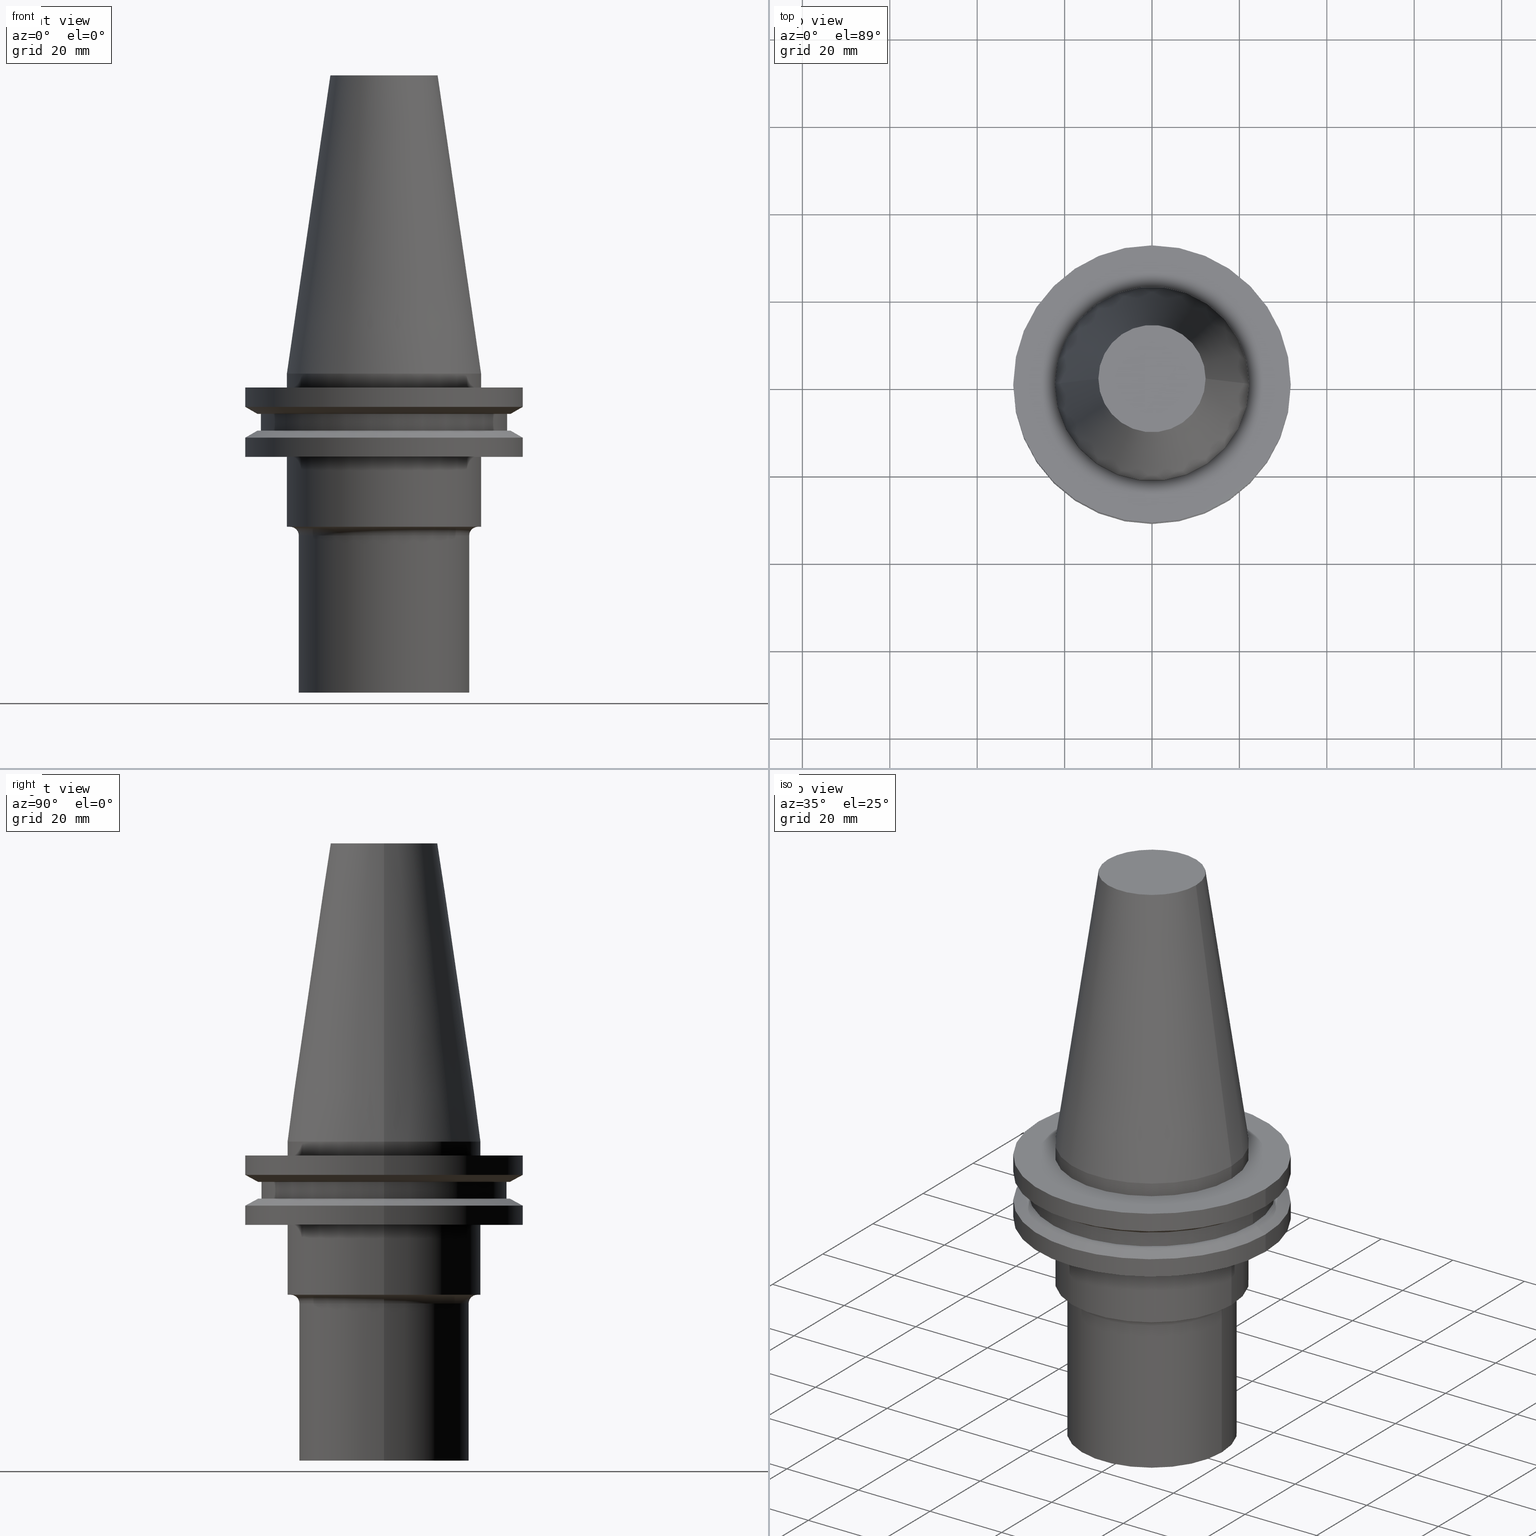
[diagram: canonical four-view strip — front | top / right | iso, engineering-drawing reading convention]
A machine part, canonical four-view strip (front | top / right | iso — engineering-drawing reading convention). The complete STEP part file that produces these views, byte-faithful:
ISO-10303-21;
HEADER;
FILE_DESCRIPTION (( 'STEP AP203' ),
    '1' );
FILE_NAME ('11_326_441.stp',
    '2022-03-07T22:04:06',
    ( '' ),
    ( '' ),
    'SwSTEP 2.0',
    'SolidWorks 2021',
    '' );
FILE_SCHEMA (( 'CONFIG_CONTROL_DESIGN' ));
ENDSEC;

DATA;
#1 = CIRCLE ( 'NONE', #713, 21.50000000000000000 ) ;
#2 = VERTEX_POINT ( 'NONE', #377 ) ;
#3 = CYLINDRICAL_SURFACE ( 'NONE', #256, 22.22500000000000142 ) ;
#4 = CARTESIAN_POINT ( 'NONE',  ( 0.000000000000000000, 0.000000000000000000, 0.000000000000000000 ) ) ;
#5 = EDGE_CURVE ( 'NONE', #2, #93, #462, .T. ) ;
#6 = AXIS2_PLACEMENT_3D ( 'NONE', #472, #660, #467 ) ;
#7 = DIRECTION ( 'NONE',  ( 1.224646799147353207E-16, 1.000000000000000000, 0.000000000000000000 ) ) ;
#8 = CARTESIAN_POINT ( 'NONE',  ( 0.000000000000000000, 0.000000000000000000, -13.05499999999999794 ) ) ;
#9 = AXIS2_PLACEMENT_3D ( 'NONE', #375, #442, #272 ) ;
#10 = LOCAL_TIME ( 16, 4, 6.000000000000000000, #733 ) ;
#11 = ORIENTED_EDGE ( 'NONE', *, *, #537, .F. ) ;
#12 = DIRECTION ( 'NONE',  ( 0.1443082272672999711, 1.767266086135276757E-17, -0.9895327864921755756 ) ) ;
#13 = VERTEX_POINT ( 'NONE', #259 ) ;
#14 = EDGE_CURVE ( 'NONE', #90, #193, #684, .T. ) ;
#15 = DIRECTION ( 'NONE',  ( -0.000000000000000000, -0.000000000000000000, 1.000000000000000000 ) ) ;
#16 = CIRCLE ( 'NONE', #6, 19.50000000000000000 ) ;
#17 = VERTEX_POINT ( 'NONE', #257 ) ;
#18 = CC_DESIGN_PERSON_AND_ORGANIZATION_ASSIGNMENT ( #243, #363, ( #284 ) ) ;
#19 = CIRCLE ( 'NONE', #151, 19.50000000000000000 ) ;
#20 = LINE ( 'NONE', #370, #654 ) ;
#21 = VERTEX_POINT ( 'NONE', #197 ) ;
#22 = CIRCLE ( 'NONE', #221, 19.50000000000000000 ) ;
#23 = ORIENTED_EDGE ( 'NONE', *, *, #120, .T. ) ;
#24 = EDGE_CURVE ( 'NONE', #479, #583, #49, .T. ) ;
#25 = CARTESIAN_POINT ( 'NONE',  ( -31.75000000000000000, 3.888253587292846476E-15, 68.25000000000000000 ) ) ;
#26 = DIRECTION ( 'NONE',  ( -0.000000000000000000, -0.000000000000000000, 1.000000000000000000 ) ) ;
#27 = ORIENTED_EDGE ( 'NONE', *, *, #265, .T. ) ;
#28 = AXIS2_PLACEMENT_3D ( 'NONE', #519, #43, #699 ) ;
#29 = EDGE_CURVE ( 'NONE', #249, #703, #19, .T. ) ;
#30 = ORIENTED_EDGE ( 'NONE', *, *, #58, .F. ) ;
#31 = AXIS2_PLACEMENT_3D ( 'NONE', #217, #99, #772 ) ;
#32 = PLANE ( 'NONE',  #436 ) ;
#33 = LINE ( 'NONE', #636, #269 ) ;
#34 = VERTEX_POINT ( 'NONE', #435 ) ;
#35 = AXIS2_PLACEMENT_3D ( 'NONE', #697, #448, #691 ) ;
#36 = ORIENTED_EDGE ( 'NONE', *, *, #292, .F. ) ;
#37 = DIRECTION ( 'NONE',  ( -0.000000000000000000, -0.000000000000000000, 1.000000000000000000 ) ) ;
#38 = AXIS2_PLACEMENT_3D ( 'NONE', #414, #180, #776 ) ;
#39 = ADVANCED_FACE ( 'NONE', ( #441 ), #642, .T. ) ;
#40 = DIRECTION ( 'NONE',  ( -0.000000000000000000, -0.000000000000000000, 1.000000000000000000 ) ) ;
#41 = VERTEX_POINT ( 'NONE', #548 ) ;
#42 = CIRCLE ( 'NONE', #469, 22.22500000000000142 ) ;
#43 = DIRECTION ( 'NONE',  ( -0.000000000000000000, -0.000000000000000000, 1.000000000000000000 ) ) ;
#44 = FACE_OUTER_BOUND ( 'NONE', #668, .T. ) ;
#45 = ORIENTED_EDGE ( 'NONE', *, *, #194, .F. ) ;
#46 = FACE_OUTER_BOUND ( 'NONE', #449, .T. ) ;
#47 = APPLICATION_CONTEXT ( 'configuration controlled 3d designs of mechanical parts and assemblies' ) ;
#48 = CARTESIAN_POINT ( 'NONE',  ( -22.22500000000000142, 2.721777511104992849E-15, -19.04999999999999716 ) ) ;
#49 = CIRCLE ( 'NONE', #612, 22.22500000000000142 ) ;
#50 = FACE_OUTER_BOUND ( 'NONE', #114, .T. ) ;
#51 = EDGE_LOOP ( 'NONE', ( #231, #607 ) ) ;
#52 = DIRECTION ( 'NONE',  ( -0.000000000000000000, -0.000000000000000000, 1.000000000000000000 ) ) ;
#53 = APPROVAL_PERSON_ORGANIZATION ( #510, #520, #54 ) ;
#54 = APPROVAL_ROLE ( '' ) ;
#55 = DIRECTION ( 'NONE',  ( 1.000000000000000000, 0.000000000000000000, 0.000000000000000000 ) ) ;
#56 = VERTEX_POINT ( 'NONE', #500 ) ;
#57 = CARTESIAN_POINT ( 'NONE',  ( 0.000000000000000000, 0.000000000000000000, -35.04999999999999716 ) ) ;
#58 = EDGE_CURVE ( 'NONE', #383, #606, #20, .T. ) ;
#59 = PLANE ( 'NONE',  #374 ) ;
#60 = ORIENTED_EDGE ( 'NONE', *, *, #254, .T. ) ;
#61 = AXIS2_PLACEMENT_3D ( 'NONE', #593, #531, #595 ) ;
#62 = CARTESIAN_POINT ( 'NONE',  ( 28.97919780457007732, 0.000000000000000000, -9.205000000000005400 ) ) ;
#63 = VECTOR ( 'NONE', #264, 1000.000000000000000 ) ;
#64 = ORIENTED_EDGE ( 'NONE', *, *, #254, .F. ) ;
#65 = LINE ( 'NONE', #664, #147 ) ;
#66 = PERSON_AND_ORGANIZATION ( #715, #475 ) ;
#67 = AXIS2_PLACEMENT_3D ( 'NONE', #458, #717, #517 ) ;
#68 = ADVANCED_FACE ( 'NONE', ( #85 ), #730, .T. ) ;
#69 = DIRECTION ( 'NONE',  ( 1.000000000000000000, 0.000000000000000000, 0.000000000000000000 ) ) ;
#70 = DATE_TIME_ROLE ( 'creation_date' ) ;
#71 = CARTESIAN_POINT ( 'NONE',  ( -21.50000000000000000, 2.632990618166809630E-15, -35.04999999999999716 ) ) ;
#72 = SECURITY_CLASSIFICATION_LEVEL ( 'unclassified' ) ;
#73 = DIRECTION ( 'NONE',  ( -0.8660254037844387076, 0.000000000000000000, -0.4999999999999998890 ) ) ;
#74 = EDGE_CURVE ( 'NONE', #637, #13, #167, .T. ) ;
#75 = VERTEX_POINT ( 'NONE', #736 ) ;
#76 = VECTOR ( 'NONE', #552, 1000.000000000000000 ) ;
#77 = CARTESIAN_POINT ( 'NONE',  ( -28.17999999999999972, 3.451054679997241634E-15, -13.05499999999999794 ) ) ;
#78 = ORIENTED_EDGE ( 'NONE', *, *, #194, .T. ) ;
#79 = AXIS2_PLACEMENT_3D ( 'NONE', #597, #356, #240 ) ;
#80 = DIRECTION ( 'NONE',  ( -0.000000000000000000, -0.000000000000000000, 1.000000000000000000 ) ) ;
#81 = CIRCLE ( 'NONE', #253, 31.75000000000000000 ) ;
#82 = DIRECTION ( 'NONE',  ( -0.000000000000000000, -0.000000000000000000, 1.000000000000000000 ) ) ;
#83 = EDGE_CURVE ( 'NONE', #308, #755, #751, .T. ) ;
#84 = CC_DESIGN_APPROVAL ( #169, ( #661 ) ) ;
#85 = FACE_OUTER_BOUND ( 'NONE', #456, .T. ) ;
#86 = DIRECTION ( 'NONE',  ( -0.000000000000000000, -0.000000000000000000, 1.000000000000000000 ) ) ;
#87 = ORIENTED_EDGE ( 'NONE', *, *, #144, .F. ) ;
#88 = CC_DESIGN_PERSON_AND_ORGANIZATION_ASSIGNMENT ( #119, #109, ( #661 ) ) ;
#89 = CALENDAR_DATE ( 2022, 7, 3 ) ;
#90 = VERTEX_POINT ( 'NONE', #738 ) ;
#91 = DIRECTION ( 'NONE',  ( 1.000000000000000000, 0.000000000000000000, 0.000000000000000000 ) ) ;
#92 = DIRECTION ( 'NONE',  ( -0.000000000000000000, -0.000000000000000000, 1.000000000000000000 ) ) ;
#93 = VERTEX_POINT ( 'NONE', #94 ) ;
#94 = CARTESIAN_POINT ( 'NONE',  ( -22.22500000000000142, 0.000000000000000000, 0.000000000000000000 ) ) ;
#95 = EDGE_CURVE ( 'NONE', #606, #193, #81, .T. ) ;
#96 = CARTESIAN_POINT ( 'NONE',  ( 31.75000000000000000, 0.000000000000000000, -7.605276606597335842 ) ) ;
#97 = EDGE_LOOP ( 'NONE', ( #136, #150 ) ) ;
#98 = AXIS2_PLACEMENT_3D ( 'NONE', #621, #92, #282 ) ;
#99 = DIRECTION ( 'NONE',  ( 0.000000000000000000, 0.000000000000000000, -1.000000000000000000 ) ) ;
#100 = ADVANCED_FACE ( 'NONE', ( #260, #490 ), #743, .F. ) ;
#101 = CARTESIAN_POINT ( 'NONE',  ( 0.000000000000000000, 28.97919780457007732, -9.204999999999996518 ) ) ;
#102 = CARTESIAN_POINT ( 'NONE',  ( 0.000000000000000000, 0.000000000000000000, 68.25000000000000000 ) ) ;
#103 = EDGE_LOOP ( 'NONE', ( #487, #646 ) ) ;
#104 = CARTESIAN_POINT ( 'NONE',  ( -22.22500000000000142, 2.721777511104992849E-15, -35.04999999999999716 ) ) ;
#105 = CYLINDRICAL_SURFACE ( 'NONE', #364, 31.75000000000000000 ) ;
#106 = AXIS2_PLACEMENT_3D ( 'NONE', #122, #303, #131 ) ;
#107 = EDGE_LOOP ( 'NONE', ( #324, #112, #666, #615 ) ) ;
#108 = DIRECTION ( 'NONE',  ( -0.000000000000000000, -0.000000000000000000, 1.000000000000000000 ) ) ;
#109 = PERSON_AND_ORGANIZATION_ROLE ( 'creator' ) ;
#110 = AXIS2_PLACEMENT_3D ( 'NONE', #271, #489, #311 ) ;
#111 = DIRECTION ( 'NONE',  ( 1.000000000000000000, 0.000000000000000000, 0.000000000000000000 ) ) ;
#112 = ORIENTED_EDGE ( 'NONE', *, *, #234, .T. ) ;
#113 = DIRECTION ( 'NONE',  ( -0.000000000000000000, -0.000000000000000000, 1.000000000000000000 ) ) ;
#114 = EDGE_LOOP ( 'NONE', ( #427, #539 ) ) ;
#115 = EDGE_CURVE ( 'NONE', #75, #775, #744, .T. ) ;
#116 = FACE_OUTER_BOUND ( 'NONE', #687, .T. ) ;
#117 = ORIENTED_EDGE ( 'NONE', *, *, #285, .F. ) ;
#118 = CARTESIAN_POINT ( 'NONE',  ( 21.50000000000000000, 0.000000000000000000, -35.04999999999999716 ) ) ;
#119 = PERSON_AND_ORGANIZATION ( #715, #475 ) ;
#120 = EDGE_CURVE ( 'NONE', #339, #277, #325, .T. ) ;
#121 = CLOSED_SHELL ( 'NONE', ( #574, #745, #502, #726, #326, #186, #223, #416, #176, #333, #39, #465, #497, #526, #100, #546, #304, #773, #694, #647, #68, #587, #470, #300, #561, #309, #196 ) ) ;
#122 = CARTESIAN_POINT ( 'NONE',  ( 0.000000000000000000, 0.000000000000000000, -3.174999999999997158 ) ) ;
#123 = MECHANICAL_CONTEXT ( 'NONE', #255, 'mechanical' ) ;
#124 = CIRCLE ( 'NONE', #405, 28.97919780457008088 ) ;
#125 = FACE_OUTER_BOUND ( 'NONE', #107, .T. ) ;
#126 = CARTESIAN_POINT ( 'NONE',  ( -21.50000000000000000, 2.632990618166809235E-15, -37.04999999999999716 ) ) ;
#127 = ORIENTED_EDGE ( 'NONE', *, *, #659, .T. ) ;
#128 = AXIS2_PLACEMENT_3D ( 'NONE', #504, #52, #575 ) ;
#129 = ORIENTED_EDGE ( 'NONE', *, *, #614, .F. ) ;
#130 = EDGE_CURVE ( 'NONE', #193, #606, #690, .T. ) ;
#131 = DIRECTION ( 'NONE',  ( 1.000000000000000000, 0.000000000000000000, 0.000000000000000000 ) ) ;
#132 = ORIENTED_EDGE ( 'NONE', *, *, #580, .F. ) ;
#133 = ORIENTED_EDGE ( 'NONE', *, *, #623, .T. ) ;
#134 = DIRECTION ( 'NONE',  ( -0.000000000000000000, -0.000000000000000000, 1.000000000000000000 ) ) ;
#135 = EDGE_CURVE ( 'NONE', #601, #34, #474, .T. ) ;
#136 = ORIENTED_EDGE ( 'NONE', *, *, #635, .F. ) ;
#137 = DIRECTION ( 'NONE',  ( 1.000000000000000000, 0.000000000000000000, 0.000000000000000000 ) ) ;
#138 = DIRECTION ( 'NONE',  ( -0.000000000000000000, -0.000000000000000000, 1.000000000000000000 ) ) ;
#139 = VECTOR ( 'NONE', #739, 1000.000000000000000 ) ;
#140 = ORIENTED_EDGE ( 'NONE', *, *, #265, .F. ) ;
#141 = LINE ( 'NONE', #491, #76 ) ;
#142 = CARTESIAN_POINT ( 'NONE',  ( 0.000000000000000000, 0.000000000000000000, 68.25000000000000000 ) ) ;
#143 = ORIENTED_EDGE ( 'NONE', *, *, #135, .T. ) ;
#144 = EDGE_CURVE ( 'NONE', #41, #568, #216, .T. ) ;
#145 = VECTOR ( 'NONE', #73, 1000.000000000000000 ) ;
#146 = ORIENTED_EDGE ( 'NONE', *, *, #555, .F. ) ;
#147 = VECTOR ( 'NONE', #352, 1000.000000000000000 ) ;
#148 = CARTESIAN_POINT ( 'NONE',  ( 0.000000000000000000, 0.000000000000000000, -3.174999999999997158 ) ) ;
#149 = DIRECTION ( 'NONE',  ( -0.000000000000000000, -0.000000000000000000, 1.000000000000000000 ) ) ;
#150 = ORIENTED_EDGE ( 'NONE', *, *, #610, .F. ) ;
#151 = AXIS2_PLACEMENT_3D ( 'NONE', #619, #134, #137 ) ;
#152 = CARTESIAN_POINT ( 'NONE',  ( 0.000000000000000000, 0.000000000000000000, 68.25000000000000000 ) ) ;
#153 = CARTESIAN_POINT ( 'NONE',  ( 0.000000000000000000, 0.000000000000000000, -9.204999999999991189 ) ) ;
#154 = PLANE ( 'NONE',  #547 ) ;
#155 = ORIENTED_EDGE ( 'NONE', *, *, #130, .T. ) ;
#156 = VECTOR ( 'NONE', #12, 999.9999999999998863 ) ;
#157 = DIRECTION ( 'NONE',  ( 1.000000000000000000, 0.000000000000000000, 0.000000000000000000 ) ) ;
#158 = DIRECTION ( 'NONE',  ( 1.000000000000000000, 0.000000000000000000, 0.000000000000000000 ) ) ;
#159 = DIRECTION ( 'NONE',  ( -0.000000000000000000, -0.000000000000000000, 1.000000000000000000 ) ) ;
#160 = ORIENTED_EDGE ( 'NONE', *, *, #285, .T. ) ;
#161 = DIRECTION ( 'NONE',  ( 1.000000000000000000, 0.000000000000000000, 0.000000000000000000 ) ) ;
#162 = EDGE_CURVE ( 'NONE', #75, #601, #628, .T. ) ;
#163 = DIRECTION ( 'NONE',  ( -0.000000000000000000, -0.000000000000000000, 1.000000000000000000 ) ) ;
#164 = ORIENTED_EDGE ( 'NONE', *, *, #24, .F. ) ;
#165 = DIRECTION ( 'NONE',  ( -0.000000000000000000, -0.000000000000000000, 1.000000000000000000 ) ) ;
#166 = FACE_OUTER_BOUND ( 'NONE', #373, .T. ) ;
#167 = CIRCLE ( 'NONE', #598, 22.22500000000000142 ) ;
#168 = PLANE ( 'NONE',  #426 ) ;
#169 = APPROVAL ( #298, 'UNSPECIFIED' ) ;
#170 = ORIENTED_EDGE ( 'NONE', *, *, #14, .T. ) ;
#171 = AXIS2_PLACEMENT_3D ( 'NONE', #719, #357, #532 ) ;
#172 = CARTESIAN_POINT ( 'NONE',  ( 0.000000000000000000, 0.000000000000000000, -19.04999999999999716 ) ) ;
#173 = VECTOR ( 'NONE', #163, 1000.000000000000000 ) ;
#174 = DIRECTION ( 'NONE',  ( 1.000000000000000000, 0.000000000000000000, 0.000000000000000000 ) ) ;
#175 = ORIENTED_EDGE ( 'NONE', *, *, #433, .F. ) ;
#176 = ADVANCED_FACE ( 'NONE', ( #710 ), #585, .T. ) ;
#177 = CARTESIAN_POINT ( 'NONE',  ( 31.74999999999999289, 0.000000000000000000, -19.04999999999999716 ) ) ;
#178 = DIRECTION ( 'NONE',  ( 0.000000000000000000, 0.000000000000000000, 1.000000000000000000 ) ) ;
#179 = ORIENTED_EDGE ( 'NONE', *, *, #708, .T. ) ;
#180 = DIRECTION ( 'NONE',  ( -0.000000000000000000, -0.000000000000000000, 1.000000000000000000 ) ) ;
#181 = APPLICATION_PROTOCOL_DEFINITION ( 'international standard', 'config_control_design', 1994, #255 ) ;
#182 = CARTESIAN_POINT ( 'NONE',  ( 0.000000000000000000, 0.000000000000000000, 0.000000000000000000 ) ) ;
#183 = PERSON_AND_ORGANIZATION_ROLE ( 'design_supplier' ) ;
#184 = AXIS2_PLACEMENT_3D ( 'NONE', #4, #241, #701 ) ;
#185 = DIRECTION ( 'NONE',  ( 0.000000000000000000, 0.000000000000000000, -1.000000000000000000 ) ) ;
#186 = ADVANCED_FACE ( 'NONE', ( #46 ), #227, .T. ) ;
#187 = FACE_OUTER_BOUND ( 'NONE', #327, .T. ) ;
#188 = EDGE_LOOP ( 'NONE', ( #45, #588, #650, #175 ) ) ;
#189 = CIRCLE ( 'NONE', #557, 22.22500000000000142 ) ;
#190 = EDGE_LOOP ( 'NONE', ( #513, #343, #525, #698 ) ) ;
#191 = DIRECTION ( 'NONE',  ( -0.000000000000000000, -0.000000000000000000, 1.000000000000000000 ) ) ;
#192 = EDGE_LOOP ( 'NONE', ( #117, #87, #27, #238 ) ) ;
#193 = VERTEX_POINT ( 'NONE', #457 ) ;
#194 = EDGE_CURVE ( 'NONE', #583, #93, #523, .T. ) ;
#195 = ORIENTED_EDGE ( 'NONE', *, *, #459, .F. ) ;
#196 = ADVANCED_FACE ( 'NONE', ( #211 ), #675, .F. ) ;
#197 = CARTESIAN_POINT ( 'NONE',  ( -28.97919780457008088, 0.000000000000000000, -13.05499999999999794 ) ) ;
#198 = CARTESIAN_POINT ( 'NONE',  ( 0.000000000000000000, 0.000000000000000000, 68.25000000000000000 ) ) ;
#199 = VECTOR ( 'NONE', #82, 1000.000000000000000 ) ;
#200 = CARTESIAN_POINT ( 'NONE',  ( 0.000000000000000000, 31.74999999999999289, -19.04999999999999716 ) ) ;
#201 = DIRECTION ( 'NONE',  ( 0.000000000000000000, -0.000000000000000000, 1.000000000000000000 ) ) ;
#202 = EDGE_CURVE ( 'NONE', #277, #339, #302, .T. ) ;
#203 = CYLINDRICAL_SURFACE ( 'NONE', #592, 22.22500000000000142 ) ;
#204 = EDGE_LOOP ( 'NONE', ( #771, #398 ) ) ;
#205 = CIRCLE ( 'NONE', #9, 31.74999999999999289 ) ;
#206 = VECTOR ( 'NONE', #251, 1000.000000000000000 ) ;
#207 = DIRECTION ( 'NONE',  ( 1.000000000000000000, 0.000000000000000000, 0.000000000000000000 ) ) ;
#208 = CARTESIAN_POINT ( 'NONE',  ( -19.50000000000000000, 2.388061258337338939E-15, 0.000000000000000000 ) ) ;
#209 = DIRECTION ( 'NONE',  ( -1.000000000000000000, 0.000000000000000000, -0.000000000000000000 ) ) ;
#210 = EDGE_LOOP ( 'NONE', ( #444, #452, #554, #274 ) ) ;
#211 = FACE_OUTER_BOUND ( 'NONE', #258, .T. ) ;
#212 = CONICAL_SURFACE ( 'NONE', #61, 22.22500000000000142, 0.1448138465474119174 ) ;
#213 = FACE_OUTER_BOUND ( 'NONE', #296, .T. ) ;
#214 = FACE_OUTER_BOUND ( 'NONE', #345, .T. ) ;
#215 = ORIENTED_EDGE ( 'NONE', *, *, #24, .T. ) ;
#216 = CIRCLE ( 'NONE', #522, 12.27178102086201150 ) ;
#217 = CARTESIAN_POINT ( 'NONE',  ( 0.000000000000000000, 0.000000000000000000, -14.65472339340266572 ) ) ;
#218 = CARTESIAN_POINT ( 'NONE',  ( 0.000000000000000000, 0.000000000000000000, -19.04999999999999716 ) ) ;
#219 = DIRECTION ( 'NONE',  ( -0.000000000000000000, -0.000000000000000000, 1.000000000000000000 ) ) ;
#220 = ORIENTED_EDGE ( 'NONE', *, *, #376, .F. ) ;
#221 = AXIS2_PLACEMENT_3D ( 'NONE', #506, #219, #334 ) ;
#222 = DIRECTION ( 'NONE',  ( -0.000000000000000000, -0.000000000000000000, 1.000000000000000000 ) ) ;
#223 = ADVANCED_FACE ( 'NONE', ( #116 ), #360, .T. ) ;
#224 = UNCERTAINTY_MEASURE_WITH_UNIT (LENGTH_MEASURE( 1.000000000000000082E-05 ), #401, 'distance_accuracy_value', 'NONE');
#225 = FACE_OUTER_BOUND ( 'NONE', #553, .T. ) ;
#226 = EDGE_LOOP ( 'NONE', ( #30, #146, #747, #155 ) ) ;
#227 = CYLINDRICAL_SURFACE ( 'NONE', #415, 28.17999999999999972 ) ;
#228 = ADVANCED_BREP_SHAPE_REPRESENTATION ( '11_326_441', ( #430, #246 ), #735 ) ;
#229 = CYLINDRICAL_SURFACE ( 'NONE', #534, 31.75000000000000000 ) ;
#230 = CARTESIAN_POINT ( 'NONE',  ( 0.000000000000000000, 19.50000000000000000, -73.00000000000000000 ) ) ;
#231 = ORIENTED_EDGE ( 'NONE', *, *, #555, .T. ) ;
#232 = CARTESIAN_POINT ( 'NONE',  ( 0.000000000000000000, 0.000000000000000000, -9.205000000000005400 ) ) ;
#233 = ORIENTED_EDGE ( 'NONE', *, *, #488, .F. ) ;
#234 = EDGE_CURVE ( 'NONE', #775, #34, #290, .T. ) ;
#235 = LINE ( 'NONE', #655, #206 ) ;
#236 = AXIS2_PLACEMENT_3D ( 'NONE', #218, #138, #158 ) ;
#237 = CARTESIAN_POINT ( 'NONE',  ( 28.17999999999999972, 0.000000000000000000, -9.204999999999991189 ) ) ;
#238 = ORIENTED_EDGE ( 'NONE', *, *, #433, .T. ) ;
#239 = EDGE_CURVE ( 'NONE', #308, #413, #774, .T. ) ;
#240 = DIRECTION ( 'NONE',  ( 1.000000000000000000, 0.000000000000000000, 0.000000000000000000 ) ) ;
#241 = DIRECTION ( 'NONE',  ( -0.000000000000000000, -0.000000000000000000, 1.000000000000000000 ) ) ;
#242 = CARTESIAN_POINT ( 'NONE',  ( 22.22500000000000142, 2.721777511104992849E-15, 0.000000000000000000 ) ) ;
#243 = PERSON_AND_ORGANIZATION ( #715, #475 ) ;
#244 = CARTESIAN_POINT ( 'NONE',  ( 0.000000000000000000, 0.000000000000000000, -9.205000000000005400 ) ) ;
#245 = EDGE_CURVE ( 'NONE', #632, #755, #463, .T. ) ;
#246 = AXIS2_PLACEMENT_3D ( 'NONE', #712, #178, #174 ) ;
#247 = ORIENTED_EDGE ( 'NONE', *, *, #14, .F. ) ;
#248 = DIRECTION ( 'NONE',  ( -0.000000000000000000, -0.000000000000000000, 1.000000000000000000 ) ) ;
#249 = VERTEX_POINT ( 'NONE', #693 ) ;
#250 = AXIS2_PLACEMENT_3D ( 'NONE', #126, #7, #349 ) ;
#251 = DIRECTION ( 'NONE',  ( -0.000000000000000000, -0.000000000000000000, 1.000000000000000000 ) ) ;
#252 = ORIENTED_EDGE ( 'NONE', *, *, #734, .F. ) ;
#253 = AXIS2_PLACEMENT_3D ( 'NONE', #368, #432, #551 ) ;
#254 = EDGE_CURVE ( 'NONE', #13, #637, #189, .T. ) ;
#255 = APPLICATION_CONTEXT ( 'configuration controlled 3d designs of mechanical parts and assemblies' ) ;
#256 = AXIS2_PLACEMENT_3D ( 'NONE', #410, #535, #301 ) ;
#257 = CARTESIAN_POINT ( 'NONE',  ( -31.75000000000000000, 3.888253587292846476E-15, -3.174999999999997158 ) ) ;
#258 = EDGE_LOOP ( 'NONE', ( #220, #674, #499, #468 ) ) ;
#259 = CARTESIAN_POINT ( 'NONE',  ( 22.22500000000000142, 0.000000000000000000, -19.04999999999999716 ) ) ;
#260 = FACE_OUTER_BOUND ( 'NONE', #97, .T. ) ;
#261 = DIRECTION ( 'NONE',  ( -0.000000000000000000, -0.000000000000000000, 1.000000000000000000 ) ) ;
#262 = ORIENTED_EDGE ( 'NONE', *, *, #83, .F. ) ;
#263 = AXIS2_PLACEMENT_3D ( 'NONE', #152, #704, #688 ) ;
#264 = DIRECTION ( 'NONE',  ( -0.000000000000000000, -0.000000000000000000, 1.000000000000000000 ) ) ;
#265 = EDGE_CURVE ( 'NONE', #41, #93, #759, .T. ) ;
#266 = CARTESIAN_POINT ( 'NONE',  ( 22.22500000000000142, 0.000000000000000000, 68.25000000000000000 ) ) ;
#267 = SHAPE_DEFINITION_REPRESENTATION ( #428, #228 ) ;
#268 = EDGE_LOOP ( 'NONE', ( #758, #170, #559, #627 ) ) ;
#269 = VECTOR ( 'NONE', #338, 1000.000000000000000 ) ;
#270 = LOCAL_TIME ( 16, 4, 6.000000000000000000, #550 ) ;
#271 = CARTESIAN_POINT ( 'NONE',  ( 0.000000000000000000, 0.000000000000000000, 0.000000000000000000 ) ) ;
#272 = DIRECTION ( 'NONE',  ( 1.000000000000000000, 0.000000000000000000, 0.000000000000000000 ) ) ;
#273 = DIRECTION ( 'NONE',  ( 1.000000000000000000, 0.000000000000000000, 0.000000000000000000 ) ) ;
#274 = ORIENTED_EDGE ( 'NONE', *, *, #245, .F. ) ;
#275 = DIRECTION ( 'NONE',  ( 1.000000000000000000, 0.000000000000000000, 0.000000000000000000 ) ) ;
#276 = LINE ( 'NONE', #384, #602 ) ;
#277 = VERTEX_POINT ( 'NONE', #104 ) ;
#278 = EDGE_CURVE ( 'NONE', #383, #21, #613, .T. ) ;
#279 = AXIS2_PLACEMENT_3D ( 'NONE', #446, #331, #565 ) ;
#280 = DIRECTION ( 'NONE',  ( -0.000000000000000000, -0.000000000000000000, 1.000000000000000000 ) ) ;
#281 = CYLINDRICAL_SURFACE ( 'NONE', #765, 28.17999999999999972 ) ;
#282 = DIRECTION ( 'NONE',  ( 1.000000000000000000, 0.000000000000000000, 0.000000000000000000 ) ) ;
#283 = VERTEX_POINT ( 'NONE', #177 ) ;
#284 = PRODUCT_DEFINITION_FORMATION_WITH_SPECIFIED_SOURCE ( 'ANY', '', #538, .NOT_KNOWN. ) ;
#285 = EDGE_CURVE ( 'NONE', #568, #2, #476, .T. ) ;
#286 = DIRECTION ( 'NONE',  ( 0.8660254037844389297, 0.000000000000000000, 0.4999999999999995004 ) ) ;
#287 = DIRECTION ( 'NONE',  ( 1.000000000000000000, 0.000000000000000000, 0.000000000000000000 ) ) ;
#288 = CARTESIAN_POINT ( 'NONE',  ( 0.000000000000000000, 22.22500000000000142, -35.04999999999999716 ) ) ;
#289 = ORIENTED_EDGE ( 'NONE', *, *, #74, .F. ) ;
#290 = LINE ( 'NONE', #346, #545 ) ;
#291 = DIRECTION ( 'NONE',  ( -1.000000000000000000, 0.000000000000000000, -0.000000000000000000 ) ) ;
#292 = EDGE_CURVE ( 'NONE', #568, #41, #667, .T. ) ;
#293 = ORIENTED_EDGE ( 'NONE', *, *, #239, .F. ) ;
#294 = CARTESIAN_POINT ( 'NONE',  ( 0.000000000000000000, 0.000000000000000000, -14.65472339340266572 ) ) ;
#295 = PERSON_AND_ORGANIZATION ( #715, #475 ) ;
#296 = EDGE_LOOP ( 'NONE', ( #662, #768, #310, #195 ) ) ;
#297 = CARTESIAN_POINT ( 'NONE',  ( 28.97919780457008088, 3.718590885307660666E-15, -13.05499999999999794 ) ) ;
#298 = APPROVAL_STATUS ( 'not_yet_approved' ) ;
#299 = CARTESIAN_POINT ( 'NONE',  ( 0.000000000000000000, 0.000000000000000000, -14.65472339340266572 ) ) ;
#300 = ADVANCED_FACE ( 'NONE', ( #590 ), #3, .T. ) ;
#301 = DIRECTION ( 'NONE',  ( 1.000000000000000000, 0.000000000000000000, 0.000000000000000000 ) ) ;
#302 = CIRCLE ( 'NONE', #340, 22.22500000000000142 ) ;
#303 = DIRECTION ( 'NONE',  ( -0.000000000000000000, -0.000000000000000000, 1.000000000000000000 ) ) ;
#304 = ADVANCED_FACE ( 'NONE', ( #716 ), #351, .T. ) ;
#305 = AXIS2_PLACEMENT_3D ( 'NONE', #686, #323, #571 ) ;
#306 = ORIENTED_EDGE ( 'NONE', *, *, #596, .F. ) ;
#307 = CYLINDRICAL_SURFACE ( 'NONE', #38, 31.75000000000000000 ) ;
#308 = VERTEX_POINT ( 'NONE', #651 ) ;
#309 = ADVANCED_FACE ( 'NONE', ( #422 ), #727, .T. ) ;
#310 = ORIENTED_EDGE ( 'NONE', *, *, #355, .T. ) ;
#311 = DIRECTION ( 'NONE',  ( -1.000000000000000000, 0.000000000000000000, 0.000000000000000000 ) ) ;
#312 = CC_DESIGN_PERSON_AND_ORGANIZATION_ASSIGNMENT ( #478, #665, ( #678 ) ) ;
#313 = ORIENTED_EDGE ( 'NONE', *, *, #362, .F. ) ;
#314 = CIRCLE ( 'NONE', #669, 21.50000000000000000 ) ;
#315 = AXIS2_PLACEMENT_3D ( 'NONE', #556, #620, #760 ) ;
#316 = CARTESIAN_POINT ( 'NONE',  ( 28.17999999999999972, 0.000000000000000000, 68.25000000000000000 ) ) ;
#317 = DIRECTION ( 'NONE',  ( 1.000000000000000000, 0.000000000000000000, 0.000000000000000000 ) ) ;
#318 = ORIENTED_EDGE ( 'NONE', *, *, #58, .T. ) ;
#319 = APPROVAL_STATUS ( 'not_yet_approved' ) ;
#320 = EDGE_CURVE ( 'NONE', #413, #308, #644, .T. ) ;
#321 = DIRECTION ( 'NONE',  ( 1.000000000000000000, 0.000000000000000000, 0.000000000000000000 ) ) ;
#322 = FACE_BOUND ( 'NONE', #543, .T. ) ;
#323 = DIRECTION ( 'NONE',  ( 0.000000000000000000, -1.000000000000000000, 0.000000000000000000 ) ) ;
#324 = ORIENTED_EDGE ( 'NONE', *, *, #115, .T. ) ;
#325 = CIRCLE ( 'NONE', #399, 22.22500000000000142 ) ;
#326 = ADVANCED_FACE ( 'NONE', ( #125 ), #382, .T. ) ;
#327 = EDGE_LOOP ( 'NONE', ( #36, #160, #507, #140 ) ) ;
#328 = LINE ( 'NONE', #566, #724 ) ;
#329 = EDGE_LOOP ( 'NONE', ( #127, #179 ) ) ;
#330 = CIRCLE ( 'NONE', #305, 2.000000000000001776 ) ;
#331 = DIRECTION ( 'NONE',  ( -0.000000000000000000, -0.000000000000000000, 1.000000000000000000 ) ) ;
#332 = CARTESIAN_POINT ( 'NONE',  ( 0.000000000000000000, 0.000000000000000000, -35.04999999999999716 ) ) ;
#333 = ADVANCED_FACE ( 'NONE', ( #187 ), #212, .T. ) ;
#334 = DIRECTION ( 'NONE',  ( 1.000000000000000000, 0.000000000000000000, 0.000000000000000000 ) ) ;
#335 = ORIENTED_EDGE ( 'NONE', *, *, #355, .F. ) ;
#336 = CARTESIAN_POINT ( 'NONE',  ( -22.22500000000000142, 2.721777511104992849E-15, 68.25000000000000000 ) ) ;
#337 = CARTESIAN_POINT ( 'NONE',  ( 0.000000000000000000, 0.000000000000000000, 68.25000000000000000 ) ) ;
#338 = DIRECTION ( 'NONE',  ( -0.000000000000000000, -0.000000000000000000, 1.000000000000000000 ) ) ;
#339 = VERTEX_POINT ( 'NONE', #419 ) ;
#340 = AXIS2_PLACEMENT_3D ( 'NONE', #57, #108, #396 ) ;
#341 = DIRECTION ( 'NONE',  ( -0.000000000000000000, -0.000000000000000000, 1.000000000000000000 ) ) ;
#342 = DIRECTION ( 'NONE',  ( -0.000000000000000000, -0.000000000000000000, 1.000000000000000000 ) ) ;
#343 = ORIENTED_EDGE ( 'NONE', *, *, #388, .T. ) ;
#344 = DIRECTION ( 'NONE',  ( -0.000000000000000000, -0.000000000000000000, 1.000000000000000000 ) ) ;
#345 = EDGE_LOOP ( 'NONE', ( #386, #466 ) ) ;
#346 = CARTESIAN_POINT ( 'NONE',  ( -28.97919780457007732, 3.548928183322474856E-15, -9.205000000000005400 ) ) ;
#347 =( NAMED_UNIT ( * ) SI_UNIT ( $, .STERADIAN. ) SOLID_ANGLE_UNIT ( ) );
#348 = ORIENTED_EDGE ( 'NONE', *, *, #162, .T. ) ;
#349 = DIRECTION ( 'NONE',  ( -1.000000000000000000, 1.224646799147355179E-16, 0.000000000000000000 ) ) ;
#350 = COORDINATED_UNIVERSAL_TIME_OFFSET ( 6, 0, .BEHIND. ) ;
#351 = CONICAL_SURFACE ( 'NONE', #451, 31.75000000000000000, 1.047197551196597853 ) ;
#352 = DIRECTION ( 'NONE',  ( -0.000000000000000000, -0.000000000000000000, 1.000000000000000000 ) ) ;
#353 = CIRCLE ( 'NONE', #236, 31.74999999999999289 ) ;
#354 = CYLINDRICAL_SURFACE ( 'NONE', #184, 19.50000000000000000 ) ;
#355 = EDGE_CURVE ( 'NONE', #707, #56, #16, .T. ) ;
#356 = DIRECTION ( 'NONE',  ( -0.000000000000000000, -0.000000000000000000, 1.000000000000000000 ) ) ;
#357 = DIRECTION ( 'NONE',  ( -0.000000000000000000, -0.000000000000000000, 1.000000000000000000 ) ) ;
#358 = APPROVAL_DATE_TIME ( #683, #520 ) ;
#359 = ORIENTED_EDGE ( 'NONE', *, *, #130, .F. ) ;
#360 = CONICAL_SURFACE ( 'NONE', #31, 31.75000000000000000, 1.047197551196597853 ) ;
#361 = LINE ( 'NONE', #603, #145 ) ;
#362 = EDGE_CURVE ( 'NONE', #763, #17, #638, .T. ) ;
#363 = PERSON_AND_ORGANIZATION_ROLE ( 'creator' ) ;
#364 = AXIS2_PLACEMENT_3D ( 'NONE', #102, #149, #385 ) ;
#365 = EDGE_LOOP ( 'NONE', ( #164, #129 ) ) ;
#366 = ORIENTED_EDGE ( 'NONE', *, *, #234, .F. ) ;
#367 = EDGE_CURVE ( 'NONE', #277, #637, #65, .T. ) ;
#368 = CARTESIAN_POINT ( 'NONE',  ( 0.000000000000000000, 0.000000000000000000, -14.65472339340266572 ) ) ;
#369 = APPROVAL_DATE_TIME ( #672, #381 ) ;
#370 = CARTESIAN_POINT ( 'NONE',  ( 31.75000000000000000, 3.888253587292846476E-15, -14.65472339340266572 ) ) ;
#371 = VECTOR ( 'NONE', #344, 1000.000000000000000 ) ;
#372 = VERTEX_POINT ( 'NONE', #118 ) ;
#373 = EDGE_LOOP ( 'NONE', ( #714, #560, #252, #380 ) ) ;
#374 = AXIS2_PLACEMENT_3D ( 'NONE', #649, #656, #291 ) ;
#375 = CARTESIAN_POINT ( 'NONE',  ( 0.000000000000000000, 0.000000000000000000, -19.04999999999999716 ) ) ;
#376 = EDGE_CURVE ( 'NONE', #391, #707, #584, .T. ) ;
#377 = CARTESIAN_POINT ( 'NONE',  ( 22.22500000000000142, 2.721777511104992849E-15, 0.000000000000000000 ) ) ;
#378 = DIRECTION ( 'NONE',  ( -0.000000000000000000, -0.000000000000000000, 1.000000000000000000 ) ) ;
#379 = DIRECTION ( 'NONE',  ( 1.000000000000000000, 0.000000000000000000, 0.000000000000000000 ) ) ;
#380 = ORIENTED_EDGE ( 'NONE', *, *, #421, .F. ) ;
#381 = APPROVAL ( #319, 'UNSPECIFIED' ) ;
#382 = CONICAL_SURFACE ( 'NONE', #740, 28.97919780457007732, 1.047197551196598297 ) ;
#383 = VERTEX_POINT ( 'NONE', #297 ) ;
#384 = CARTESIAN_POINT ( 'NONE',  ( 31.75000000000000000, 0.000000000000000000, 68.25000000000000000 ) ) ;
#385 = DIRECTION ( 'NONE',  ( 1.000000000000000000, 0.000000000000000000, 0.000000000000000000 ) ) ;
#386 = ORIENTED_EDGE ( 'NONE', *, *, #144, .T. ) ;
#387 = AXIS2_PLACEMENT_3D ( 'NONE', #294, #165, #400 ) ;
#388 = EDGE_CURVE ( 'NONE', #34, #601, #412, .T. ) ;
#389 = CARTESIAN_POINT ( 'NONE',  ( 31.75000000000000000, 0.000000000000000000, -14.65472339340266572 ) ) ;
#390 = FACE_BOUND ( 'NONE', #329, .T. ) ;
#391 = VERTEX_POINT ( 'NONE', #71 ) ;
#392 = CARTESIAN_POINT ( 'NONE',  ( -22.22500000000000142, 0.000000000000000000, 0.000000000000000000 ) ) ;
#393 = CYLINDRICAL_SURFACE ( 'NONE', #657, 31.75000000000000000 ) ;
#394 = CARTESIAN_POINT ( 'NONE',  ( -28.17999999999999972, 3.451054679997241634E-15, 68.25000000000000000 ) ) ;
#395 = ORIENTED_EDGE ( 'NONE', *, *, #278, .F. ) ;
#396 = DIRECTION ( 'NONE',  ( 1.000000000000000000, 0.000000000000000000, 0.000000000000000000 ) ) ;
#397 = FACE_OUTER_BOUND ( 'NONE', #609, .T. ) ;
#398 = ORIENTED_EDGE ( 'NONE', *, *, #473, .F. ) ;
#399 = AXIS2_PLACEMENT_3D ( 'NONE', #769, #280, #648 ) ;
#400 = DIRECTION ( 'NONE',  ( 1.000000000000000000, 0.000000000000000000, 0.000000000000000000 ) ) ;
#401 =( LENGTH_UNIT ( ) NAMED_UNIT ( * ) SI_UNIT ( .MILLI., .METRE. ) );
#402 = CARTESIAN_POINT ( 'NONE',  ( 12.27178102086201150, 2.112318622904291439E-15, 68.25000000000000000 ) ) ;
#403 = EDGE_LOOP ( 'NONE', ( #23, #518, #64, #233 ) ) ;
#404 = EDGE_CURVE ( 'NONE', #21, #193, #361, .T. ) ;
#405 = AXIS2_PLACEMENT_3D ( 'NONE', #626, #40, #273 ) ;
#406 = CC_DESIGN_APPROVAL ( #381, ( #678 ) ) ;
#407 = DIRECTION ( 'NONE',  ( -0.000000000000000000, -0.000000000000000000, 1.000000000000000000 ) ) ;
#408 = CARTESIAN_POINT ( 'NONE',  ( 0.000000000000000000, 0.000000000000000000, 68.25000000000000000 ) ) ;
#409 = ORIENTED_EDGE ( 'NONE', *, *, #320, .F. ) ;
#410 = CARTESIAN_POINT ( 'NONE',  ( 0.000000000000000000, 0.000000000000000000, 68.25000000000000000 ) ) ;
#411 = APPLICATION_PROTOCOL_DEFINITION ( 'international standard', 'config_control_design', 1994, #47 ) ;
#412 = CIRCLE ( 'NONE', #79, 31.75000000000000000 ) ;
#413 = VERTEX_POINT ( 'NONE', #77 ) ;
#414 = CARTESIAN_POINT ( 'NONE',  ( 0.000000000000000000, 0.000000000000000000, 68.25000000000000000 ) ) ;
#415 = AXIS2_PLACEMENT_3D ( 'NONE', #764, #569, #161 ) ;
#416 = ADVANCED_FACE ( 'NONE', ( #471 ), #307, .T. ) ;
#417 = APPROVAL_PERSON_ORGANIZATION ( #295, #169, #591 ) ;
#418 = DIRECTION ( 'NONE',  ( -0.000000000000000000, -0.000000000000000000, 1.000000000000000000 ) ) ;
#419 = CARTESIAN_POINT ( 'NONE',  ( 22.22500000000000142, 0.000000000000000000, -35.04999999999999716 ) ) ;
#420 = COORDINATED_UNIVERSAL_TIME_OFFSET ( 6, 0, .BEHIND. ) ;
#421 = EDGE_CURVE ( 'NONE', #703, #56, #235, .T. ) ;
#422 = FACE_OUTER_BOUND ( 'NONE', #572, .T. ) ;
#423 = PERSON_AND_ORGANIZATION ( #715, #475 ) ;
#424 = ORIENTED_EDGE ( 'NONE', *, *, #95, .T. ) ;
#425 = VECTOR ( 'NONE', #633, 999.9999999999998863 ) ;
#426 = AXIS2_PLACEMENT_3D ( 'NONE', #230, #460, #770 ) ;
#427 = ORIENTED_EDGE ( 'NONE', *, *, #120, .F. ) ;
#428 = PRODUCT_DEFINITION_SHAPE ( 'NONE', 'NONE',  #661 ) ;
#429 = CALENDAR_DATE ( 2022, 7, 3 ) ;
#430 = MANIFOLD_SOLID_BREP ( 'CKB', #121 ) ;
#431 = CARTESIAN_POINT ( 'NONE',  ( 0.000000000000000000, 0.000000000000000000, 0.000000000000000000 ) ) ;
#432 = DIRECTION ( 'NONE',  ( -0.000000000000000000, -0.000000000000000000, 1.000000000000000000 ) ) ;
#433 = EDGE_CURVE ( 'NONE', #93, #2, #42, .T. ) ;
#434 = DIRECTION ( 'NONE',  ( 1.000000000000000000, 0.000000000000000000, 0.000000000000000000 ) ) ;
#435 = CARTESIAN_POINT ( 'NONE',  ( -31.75000000000000000, 3.888253587292846476E-15, -7.605276606597335842 ) ) ;
#436 = AXIS2_PLACEMENT_3D ( 'NONE', #101, #201, #437 ) ;
#437 = DIRECTION ( 'NONE',  ( 1.000000000000000000, 0.000000000000000000, 0.000000000000000000 ) ) ;
#438 = CC_DESIGN_DATE_AND_TIME_ASSIGNMENT ( #594, #70, ( #661 ) ) ;
#439 = CYLINDRICAL_SURFACE ( 'NONE', #98, 22.22500000000000142 ) ;
#440 = ORIENTED_EDGE ( 'NONE', *, *, #404, .F. ) ;
#441 = FACE_OUTER_BOUND ( 'NONE', #192, .T. ) ;
#442 = DIRECTION ( 'NONE',  ( -0.000000000000000000, -0.000000000000000000, 1.000000000000000000 ) ) ;
#443 = LINE ( 'NONE', #394, #173 ) ;
#444 = ORIENTED_EDGE ( 'NONE', *, *, #516, .F. ) ;
#445 = EDGE_CURVE ( 'NONE', #17, #763, #711, .T. ) ;
#446 = CARTESIAN_POINT ( 'NONE',  ( 0.000000000000000000, 0.000000000000000000, -13.05499999999999794 ) ) ;
#447 = DIRECTION ( 'NONE',  ( -0.000000000000000000, -0.000000000000000000, 1.000000000000000000 ) ) ;
#448 = DIRECTION ( 'NONE',  ( 0.000000000000000000, 0.000000000000000000, -1.000000000000000000 ) ) ;
#449 = EDGE_LOOP ( 'NONE', ( #599, #482, #484, #262 ) ) ;
#450 = DIRECTION ( 'NONE',  ( -0.8660254037844389297, 1.060575238724907285E-16, 0.4999999999999995004 ) ) ;
#451 = AXIS2_PLACEMENT_3D ( 'NONE', #299, #185, #480 ) ;
#452 = ORIENTED_EDGE ( 'NONE', *, *, #320, .T. ) ;
#453 = CIRCLE ( 'NONE', #677, 28.97919780457007732 ) ;
#454 = DIRECTION ( 'NONE',  ( 1.000000000000000000, 0.000000000000000000, 0.000000000000000000 ) ) ;
#455 = FACE_BOUND ( 'NONE', #718, .T. ) ;
#456 = EDGE_LOOP ( 'NONE', ( #366, #579, #348, #741 ) ) ;
#457 = CARTESIAN_POINT ( 'NONE',  ( -31.75000000000000000, 3.888253587292846476E-15, -14.65472339340266572 ) ) ;
#458 = CARTESIAN_POINT ( 'NONE',  ( 0.000000000000000000, 0.000000000000000000, -37.04999999999999716 ) ) ;
#459 = EDGE_CURVE ( 'NONE', #372, #56, #330, .T. ) ;
#460 = DIRECTION ( 'NONE',  ( 0.000000000000000000, -0.000000000000000000, 1.000000000000000000 ) ) ;
#461 = EDGE_LOOP ( 'NONE', ( #11, #622 ) ) ;
#462 = CIRCLE ( 'NONE', #663, 22.22500000000000142 ) ;
#463 = CIRCLE ( 'NONE', #28, 28.17999999999999972 ) ;
#464 = DIRECTION ( 'NONE',  ( 1.000000000000000000, 0.000000000000000000, 0.000000000000000000 ) ) ;
#465 = ADVANCED_FACE ( 'NONE', ( #214 ), #578, .F. ) ;
#466 = ORIENTED_EDGE ( 'NONE', *, *, #292, .T. ) ;
#467 = DIRECTION ( 'NONE',  ( 1.000000000000000000, 0.000000000000000000, 0.000000000000000000 ) ) ;
#468 = ORIENTED_EDGE ( 'NONE', *, *, #734, .T. ) ;
#469 = AXIS2_PLACEMENT_3D ( 'NONE', #542, #15, #731 ) ;
#470 = ADVANCED_FACE ( 'NONE', ( #567, #762 ), #154, .F. ) ;
#471 = FACE_OUTER_BOUND ( 'NONE', #268, .T. ) ;
#472 = CARTESIAN_POINT ( 'NONE',  ( 0.000000000000000000, 0.000000000000000000, -37.04999999999999716 ) ) ;
#473 = EDGE_CURVE ( 'NONE', #775, #75, #453, .T. ) ;
#474 = CIRCLE ( 'NONE', #128, 31.75000000000000000 ) ;
#475 = ORGANIZATION ( 'UNSPECIFIED', 'UNSPECIFIED', '' ) ;
#476 = LINE ( 'NONE', #242, #156 ) ;
#477 = CC_DESIGN_APPROVAL ( #520, ( #284 ) ) ;
#478 = PERSON_AND_ORGANIZATION ( #715, #475 ) ;
#479 = VERTEX_POINT ( 'NONE', #512 ) ;
#480 = DIRECTION ( 'NONE',  ( -1.000000000000000000, 0.000000000000000000, 0.000000000000000000 ) ) ;
#481 = ORIENTED_EDGE ( 'NONE', *, *, #29, .T. ) ;
#482 = ORIENTED_EDGE ( 'NONE', *, *, #516, .T. ) ;
#483 = CARTESIAN_POINT ( 'NONE',  ( 0.000000000000000000, 0.000000000000000000, -3.174999999999997158 ) ) ;
#484 = ORIENTED_EDGE ( 'NONE', *, *, #623, .F. ) ;
#485 = VECTOR ( 'NONE', #37, 1000.000000000000000 ) ;
#486 = DIRECTION ( 'NONE',  ( -0.000000000000000000, -0.000000000000000000, 1.000000000000000000 ) ) ;
#487 = ORIENTED_EDGE ( 'NONE', *, *, #362, .T. ) ;
#488 = EDGE_CURVE ( 'NONE', #339, #13, #33, .T. ) ;
#489 = DIRECTION ( 'NONE',  ( 0.000000000000000000, 0.000000000000000000, -1.000000000000000000 ) ) ;
#490 = FACE_BOUND ( 'NONE', #729, .T. ) ;
#491 = CARTESIAN_POINT ( 'NONE',  ( 31.75000000000000000, 0.000000000000000000, 68.25000000000000000 ) ) ;
#492 = VECTOR ( 'NONE', #286, 1000.000000000000000 ) ;
#493 = ORIENTED_EDGE ( 'NONE', *, *, #488, .T. ) ;
#494 = DIRECTION ( 'NONE',  ( -0.000000000000000000, -0.000000000000000000, 1.000000000000000000 ) ) ;
#495 = LOCAL_TIME ( 16, 4, 6.000000000000000000, #524 ) ;
#496 = LINE ( 'NONE', #266, #139 ) ;
#497 = ADVANCED_FACE ( 'NONE', ( #390, #50 ), #631, .F. ) ;
#498 = DIRECTION ( 'NONE',  ( 0.000000000000000000, -0.000000000000000000, 1.000000000000000000 ) ) ;
#499 = ORIENTED_EDGE ( 'NONE', *, *, #459, .T. ) ;
#500 = CARTESIAN_POINT ( 'NONE',  ( 19.50000000000000000, 0.000000000000000000, -37.04999999999999716 ) ) ;
#501 = DIRECTION ( 'NONE',  ( 1.000000000000000000, 0.000000000000000000, 0.000000000000000000 ) ) ;
#502 = ADVANCED_FACE ( 'NONE', ( #225 ), #203, .T. ) ;
#503 = ORIENTED_EDGE ( 'NONE', *, *, #245, .T. ) ;
#504 = CARTESIAN_POINT ( 'NONE',  ( 0.000000000000000000, 0.000000000000000000, -7.605276606597335842 ) ) ;
#505 = DIRECTION ( 'NONE',  ( 1.000000000000000000, 0.000000000000000000, 0.000000000000000000 ) ) ;
#506 = CARTESIAN_POINT ( 'NONE',  ( 0.000000000000000000, 0.000000000000000000, -73.00000000000000000 ) ) ;
#507 = ORIENTED_EDGE ( 'NONE', *, *, #5, .T. ) ;
#508 = AXIS2_PLACEMENT_3D ( 'NONE', #200, #679, #454 ) ;
#509 = CARTESIAN_POINT ( 'NONE',  ( 0.000000000000000000, 0.000000000000000000, -13.05499999999999794 ) ) ;
#510 = PERSON_AND_ORGANIZATION ( #715, #475 ) ;
#511 = AXIS2_PLACEMENT_3D ( 'NONE', #148, #689, #505 ) ;
#512 = CARTESIAN_POINT ( 'NONE',  ( 22.22500000000000142, 0.000000000000000000, -3.174999999999997158 ) ) ;
#513 = ORIENTED_EDGE ( 'NONE', *, *, #722, .F. ) ;
#514 = LOCAL_TIME ( 16, 4, 6.000000000000000000, #420 ) ;
#515 = DIRECTION ( 'NONE',  ( -0.000000000000000000, -0.000000000000000000, 1.000000000000000000 ) ) ;
#516 = EDGE_CURVE ( 'NONE', #413, #632, #443, .T. ) ;
#517 = DIRECTION ( 'NONE',  ( 1.000000000000000000, 0.000000000000000000, 0.000000000000000000 ) ) ;
#518 = ORIENTED_EDGE ( 'NONE', *, *, #367, .T. ) ;
#519 = CARTESIAN_POINT ( 'NONE',  ( 0.000000000000000000, 0.000000000000000000, -9.204999999999991189 ) ) ;
#520 = APPROVAL ( #576, 'UNSPECIFIED' ) ;
#521 = ORIENTED_EDGE ( 'NONE', *, *, #681, .T. ) ;
#522 = AXIS2_PLACEMENT_3D ( 'NONE', #643, #113, #464 ) ;
#523 = LINE ( 'NONE', #336, #371 ) ;
#524 = COORDINATED_UNIVERSAL_TIME_OFFSET ( 6, 0, .BEHIND. ) ;
#525 = ORIENTED_EDGE ( 'NONE', *, *, #596, .T. ) ;
#526 = ADVANCED_FACE ( 'NONE', ( #397 ), #439, .T. ) ;
#527 = CIRCLE ( 'NONE', #511, 22.22500000000000142 ) ;
#528 = DIRECTION ( 'NONE',  ( 1.000000000000000000, 0.000000000000000000, 0.000000000000000000 ) ) ;
#529 = CARTESIAN_POINT ( 'NONE',  ( -28.97919780457007732, 3.718590885307660666E-15, -9.205000000000005400 ) ) ;
#530 = CC_DESIGN_DATE_AND_TIME_ASSIGNMENT ( #742, #728, ( #678 ) ) ;
#531 = DIRECTION ( 'NONE',  ( 0.000000000000000000, 0.000000000000000000, -1.000000000000000000 ) ) ;
#532 = DIRECTION ( 'NONE',  ( 1.000000000000000000, 0.000000000000000000, 0.000000000000000000 ) ) ;
#533 = EDGE_LOOP ( 'NONE', ( #247, #692, #521, #359 ) ) ;
#534 = AXIS2_PLACEMENT_3D ( 'NONE', #408, #766, #287 ) ;
#535 = DIRECTION ( 'NONE',  ( -0.000000000000000000, -0.000000000000000000, 1.000000000000000000 ) ) ;
#536 = CALENDAR_DATE ( 2022, 7, 3 ) ;
#537 = EDGE_CURVE ( 'NONE', #703, #249, #22, .T. ) ;
#538 = PRODUCT ( '11_326_441', '11_326_441', '', ( #123 ) ) ;
#539 = ORIENTED_EDGE ( 'NONE', *, *, #202, .F. ) ;
#540 = ORIENTED_EDGE ( 'NONE', *, *, #421, .T. ) ;
#541 = APPROVAL_ROLE ( '' ) ;
#542 = CARTESIAN_POINT ( 'NONE',  ( 0.000000000000000000, 0.000000000000000000, 0.000000000000000000 ) ) ;
#543 = EDGE_LOOP ( 'NONE', ( #133, #503 ) ) ;
#544 = DIRECTION ( 'NONE',  ( 0.8660254037844387076, 1.060575238724906915E-16, -0.4999999999999998890 ) ) ;
#545 = VECTOR ( 'NONE', #450, 1000.000000000000000 ) ;
#546 = ADVANCED_FACE ( 'NONE', ( #767 ), #105, .T. ) ;
#547 = AXIS2_PLACEMENT_3D ( 'NONE', #702, #754, #209 ) ;
#548 = CARTESIAN_POINT ( 'NONE',  ( -12.27178102086201150, 0.000000000000000000, 68.25000000000000000 ) ) ;
#549 = CC_DESIGN_PERSON_AND_ORGANIZATION_ASSIGNMENT ( #423, #183, ( #284 ) ) ;
#550 = COORDINATED_UNIVERSAL_TIME_OFFSET ( 6, 0, .BEHIND. ) ;
#551 = DIRECTION ( 'NONE',  ( 1.000000000000000000, 0.000000000000000000, 0.000000000000000000 ) ) ;
#552 = DIRECTION ( 'NONE',  ( -0.000000000000000000, -0.000000000000000000, 1.000000000000000000 ) ) ;
#553 = EDGE_LOOP ( 'NONE', ( #215, #78, #682, #641 ) ) ;
#554 = ORIENTED_EDGE ( 'NONE', *, *, #83, .T. ) ;
#555 = EDGE_CURVE ( 'NONE', #21, #383, #124, .T. ) ;
#556 = CARTESIAN_POINT ( 'NONE',  ( 0.000000000000000000, 0.000000000000000000, -37.04999999999999716 ) ) ;
#557 = AXIS2_PLACEMENT_3D ( 'NONE', #172, #407, #275 ) ;
#558 = CARTESIAN_POINT ( 'NONE',  ( 0.000000000000000000, 0.000000000000000000, -9.205000000000005400 ) ) ;
#559 = ORIENTED_EDGE ( 'NONE', *, *, #95, .F. ) ;
#560 = ORIENTED_EDGE ( 'NONE', *, *, #580, .T. ) ;
#561 = ADVANCED_FACE ( 'NONE', ( #706 ), #168, .F. ) ;
#562 = CIRCLE ( 'NONE', #577, 28.17999999999999972 ) ;
#563 = DIRECTION ( 'NONE',  ( 1.000000000000000000, 0.000000000000000000, 0.000000000000000000 ) ) ;
#564 = ORIENTED_EDGE ( 'NONE', *, *, #367, .F. ) ;
#565 = DIRECTION ( 'NONE',  ( 1.000000000000000000, 0.000000000000000000, 0.000000000000000000 ) ) ;
#566 = CARTESIAN_POINT ( 'NONE',  ( -31.75000000000000000, 3.888253587292846476E-15, 68.25000000000000000 ) ) ;
#567 = FACE_BOUND ( 'NONE', #365, .T. ) ;
#568 = VERTEX_POINT ( 'NONE', #402 ) ;
#569 = DIRECTION ( 'NONE',  ( -0.000000000000000000, -0.000000000000000000, 1.000000000000000000 ) ) ;
#570 = DIRECTION ( 'NONE',  ( 1.000000000000000000, 0.000000000000000000, 0.000000000000000000 ) ) ;
#571 = DIRECTION ( 'NONE',  ( 0.000000000000000000, 0.000000000000000000, -1.000000000000000000 ) ) ;
#572 = EDGE_LOOP ( 'NONE', ( #132, #481, #540, #335 ) ) ;
#573 = AXIS2_PLACEMENT_3D ( 'NONE', #232, #515, #639 ) ;
#574 = ADVANCED_FACE ( 'NONE', ( #213 ), #695, .F. ) ;
#575 = DIRECTION ( 'NONE',  ( 1.000000000000000000, 0.000000000000000000, 0.000000000000000000 ) ) ;
#576 = APPROVAL_STATUS ( 'not_yet_approved' ) ;
#577 = AXIS2_PLACEMENT_3D ( 'NONE', #153, #685, #91 ) ;
#578 = PLANE ( 'NONE',  #35 ) ;
#579 = ORIENTED_EDGE ( 'NONE', *, *, #473, .T. ) ;
#580 = EDGE_CURVE ( 'NONE', #249, #707, #746, .T. ) ;
#581 = CARTESIAN_POINT ( 'NONE',  ( 0.000000000000000000, 0.000000000000000000, -37.04999999999999716 ) ) ;
#582 =( NAMED_UNIT ( * ) PLANE_ANGLE_UNIT ( ) SI_UNIT ( $, .RADIAN. ) );
#583 = VERTEX_POINT ( 'NONE', #696 ) ;
#584 = CIRCLE ( 'NONE', #250, 2.000000000000001776 ) ;
#585 = CYLINDRICAL_SURFACE ( 'NONE', #263, 22.22500000000000142 ) ;
#586 = PERSON_AND_ORGANIZATION_ROLE ( 'design_owner' ) ;
#587 = ADVANCED_FACE ( 'NONE', ( #634 ), #393, .T. ) ;
#588 = ORIENTED_EDGE ( 'NONE', *, *, #614, .T. ) ;
#589 = AXIS2_PLACEMENT_3D ( 'NONE', #611, #486, #321 ) ;
#590 = FACE_OUTER_BOUND ( 'NONE', #188, .T. ) ;
#591 = APPROVAL_ROLE ( '' ) ;
#592 = AXIS2_PLACEMENT_3D ( 'NONE', #142, #159, #379 ) ;
#593 = CARTESIAN_POINT ( 'NONE',  ( 0.000000000000000000, 0.000000000000000000, 0.000000000000000000 ) ) ;
#594 = DATE_AND_TIME ( #720, #616 ) ;
#595 = DIRECTION ( 'NONE',  ( -1.000000000000000000, 0.000000000000000000, 0.000000000000000000 ) ) ;
#596 = EDGE_CURVE ( 'NONE', #601, #763, #141, .T. ) ;
#597 = CARTESIAN_POINT ( 'NONE',  ( 0.000000000000000000, 0.000000000000000000, -7.605276606597335842 ) ) ;
#598 = AXIS2_PLACEMENT_3D ( 'NONE', #756, #494, #671 ) ;
#599 = ORIENTED_EDGE ( 'NONE', *, *, #239, .T. ) ;
#600 = AXIS2_PLACEMENT_3D ( 'NONE', #509, #222, #69 ) ;
#601 = VERTEX_POINT ( 'NONE', #96 ) ;
#602 = VECTOR ( 'NONE', #378, 1000.000000000000000 ) ;
#603 = CARTESIAN_POINT ( 'NONE',  ( -31.75000000000000000, 0.000000000000000000, -14.65472339340266572 ) ) ;
#604 = APPROVAL_PERSON_ORGANIZATION ( #605, #381, #541 ) ;
#605 = PERSON_AND_ORGANIZATION ( #715, #475 ) ;
#606 = VERTEX_POINT ( 'NONE', #389 ) ;
#607 = ORIENTED_EDGE ( 'NONE', *, *, #278, .T. ) ;
#608 = AXIS2_PLACEMENT_3D ( 'NONE', #483, #191, #111 ) ;
#609 = EDGE_LOOP ( 'NONE', ( #564, #737, #493, #289 ) ) ;
#610 = EDGE_CURVE ( 'NONE', #90, #283, #205, .T. ) ;
#611 = CARTESIAN_POINT ( 'NONE',  ( 0.000000000000000000, 0.000000000000000000, -9.205000000000005400 ) ) ;
#612 = AXIS2_PLACEMENT_3D ( 'NONE', #673, #80, #207 ) ;
#613 = CIRCLE ( 'NONE', #600, 28.97919780457008088 ) ;
#614 = EDGE_CURVE ( 'NONE', #583, #479, #527, .T. ) ;
#615 = ORIENTED_EDGE ( 'NONE', *, *, #162, .F. ) ;
#616 = LOCAL_TIME ( 16, 4, 6.000000000000000000, #350 ) ;
#617 = DIRECTION ( 'NONE',  ( 1.000000000000000000, 0.000000000000000000, 0.000000000000000000 ) ) ;
#618 = FACE_OUTER_BOUND ( 'NONE', #210, .T. ) ;
#619 = CARTESIAN_POINT ( 'NONE',  ( 0.000000000000000000, 0.000000000000000000, -73.00000000000000000 ) ) ;
#620 = DIRECTION ( 'NONE',  ( -0.000000000000000000, -0.000000000000000000, 1.000000000000000000 ) ) ;
#621 = CARTESIAN_POINT ( 'NONE',  ( 0.000000000000000000, 0.000000000000000000, 68.25000000000000000 ) ) ;
#622 = ORIENTED_EDGE ( 'NONE', *, *, #29, .F. ) ;
#623 = EDGE_CURVE ( 'NONE', #755, #632, #562, .T. ) ;
#624 = DIRECTION ( 'NONE',  ( -0.000000000000000000, -0.000000000000000000, 1.000000000000000000 ) ) ;
#625 = CARTESIAN_POINT ( 'NONE',  ( 0.000000000000000000, 0.000000000000000000, -35.04999999999999716 ) ) ;
#626 = CARTESIAN_POINT ( 'NONE',  ( 0.000000000000000000, 0.000000000000000000, -13.05499999999999794 ) ) ;
#627 = ORIENTED_EDGE ( 'NONE', *, *, #681, .F. ) ;
#628 = LINE ( 'NONE', #62, #492 ) ;
#629 = CIRCLE ( 'NONE', #67, 19.50000000000000000 ) ;
#630 = FACE_OUTER_BOUND ( 'NONE', #204, .T. ) ;
#631 = PLANE ( 'NONE',  #749 ) ;
#632 = VERTEX_POINT ( 'NONE', #757 ) ;
#633 = DIRECTION ( 'NONE',  ( -0.1443082272672999711, 0.000000000000000000, -0.9895327864921755756 ) ) ;
#634 = FACE_OUTER_BOUND ( 'NONE', #190, .T. ) ;
#635 = EDGE_CURVE ( 'NONE', #283, #90, #353, .T. ) ;
#636 = CARTESIAN_POINT ( 'NONE',  ( 22.22500000000000142, 0.000000000000000000, 68.25000000000000000 ) ) ;
#637 = VERTEX_POINT ( 'NONE', #48 ) ;
#638 = CIRCLE ( 'NONE', #106, 31.75000000000000000 ) ;
#639 = DIRECTION ( 'NONE',  ( 1.000000000000000000, 0.000000000000000000, 0.000000000000000000 ) ) ;
#640 = DATE_AND_TIME ( #777, #495 ) ;
#641 = ORIENTED_EDGE ( 'NONE', *, *, #670, .F. ) ;
#642 = CONICAL_SURFACE ( 'NONE', #110, 22.22500000000000142, 0.1448138465474119174 ) ;
#643 = CARTESIAN_POINT ( 'NONE',  ( 0.000000000000000000, 0.000000000000000000, 68.25000000000000000 ) ) ;
#644 = CIRCLE ( 'NONE', #748, 28.17999999999999972 ) ;
#645 = FACE_OUTER_BOUND ( 'NONE', #51, .T. ) ;
#646 = ORIENTED_EDGE ( 'NONE', *, *, #445, .T. ) ;
#647 = ADVANCED_FACE ( 'NONE', ( #630, #322 ), #32, .F. ) ;
#648 = DIRECTION ( 'NONE',  ( 1.000000000000000000, 0.000000000000000000, 0.000000000000000000 ) ) ;
#649 = CARTESIAN_POINT ( 'NONE',  ( 0.000000000000000000, 28.17999999999999972, -13.05499999999999794 ) ) ;
#650 = ORIENTED_EDGE ( 'NONE', *, *, #670, .T. ) ;
#651 = CARTESIAN_POINT ( 'NONE',  ( 28.17999999999999972, 0.000000000000000000, -13.05499999999999794 ) ) ;
#652 = APPROVAL_DATE_TIME ( #640, #169 ) ;
#653 = ORIENTED_EDGE ( 'NONE', *, *, #74, .T. ) ;
#654 = VECTOR ( 'NONE', #544, 1000.000000000000000 ) ;
#655 = CARTESIAN_POINT ( 'NONE',  ( 19.50000000000000000, 0.000000000000000000, 0.000000000000000000 ) ) ;
#656 = DIRECTION ( 'NONE',  ( 0.000000000000000000, 0.000000000000000000, -1.000000000000000000 ) ) ;
#657 = AXIS2_PLACEMENT_3D ( 'NONE', #337, #447, #570 ) ;
#658 = DIRECTION ( 'NONE',  ( 1.000000000000000000, 0.000000000000000000, 0.000000000000000000 ) ) ;
#659 = EDGE_CURVE ( 'NONE', #372, #391, #314, .T. ) ;
#660 = DIRECTION ( 'NONE',  ( -0.000000000000000000, -0.000000000000000000, 1.000000000000000000 ) ) ;
#661 = PRODUCT_DEFINITION ( 'UNKNOWN', '', #284, #761 ) ;
#662 = ORIENTED_EDGE ( 'NONE', *, *, #708, .F. ) ;
#663 = AXIS2_PLACEMENT_3D ( 'NONE', #431, #624, #617 ) ;
#664 = CARTESIAN_POINT ( 'NONE',  ( -22.22500000000000142, 2.721777511104992849E-15, 68.25000000000000000 ) ) ;
#665 = PERSON_AND_ORGANIZATION_ROLE ( 'classification_officer' ) ;
#666 = ORIENTED_EDGE ( 'NONE', *, *, #135, .F. ) ;
#667 = CIRCLE ( 'NONE', #171, 12.27178102086201150 ) ;
#668 = EDGE_LOOP ( 'NONE', ( #143, #732, #313, #306 ) ) ;
#669 = AXIS2_PLACEMENT_3D ( 'NONE', #332, #261, #501 ) ;
#670 = EDGE_CURVE ( 'NONE', #479, #2, #496, .T. ) ;
#671 = DIRECTION ( 'NONE',  ( 1.000000000000000000, 0.000000000000000000, 0.000000000000000000 ) ) ;
#672 = DATE_AND_TIME ( #429, #10 ) ;
#673 = CARTESIAN_POINT ( 'NONE',  ( 0.000000000000000000, 0.000000000000000000, -3.174999999999997158 ) ) ;
#674 = ORIENTED_EDGE ( 'NONE', *, *, #659, .F. ) ;
#675 = TOROIDAL_SURFACE ( 'NONE', #709, 21.50000000000000000, 2.000000000000003553 ) ;
#676 = CARTESIAN_POINT ( 'NONE',  ( 19.50000000000000000, 0.000000000000000000, -73.00000000000000000 ) ) ;
#677 = AXIS2_PLACEMENT_3D ( 'NONE', #558, #342, #55 ) ;
#678 = SECURITY_CLASSIFICATION ( '', '', #72 ) ;
#679 = DIRECTION ( 'NONE',  ( 0.000000000000000000, -0.000000000000000000, 1.000000000000000000 ) ) ;
#680 = CARTESIAN_POINT ( 'NONE',  ( -19.50000000000000000, 2.388061258337338939E-15, -37.04999999999999716 ) ) ;
#681 = EDGE_CURVE ( 'NONE', #283, #606, #276, .T. ) ;
#682 = ORIENTED_EDGE ( 'NONE', *, *, #5, .F. ) ;
#683 = DATE_AND_TIME ( #89, #270 ) ;
#684 = LINE ( 'NONE', #25, #63 ) ;
#685 = DIRECTION ( 'NONE',  ( -0.000000000000000000, -0.000000000000000000, 1.000000000000000000 ) ) ;
#686 = CARTESIAN_POINT ( 'NONE',  ( 21.50000000000000000, 0.000000000000000000, -37.04999999999999716 ) ) ;
#687 = EDGE_LOOP ( 'NONE', ( #395, #318, #424, #440 ) ) ;
#688 = DIRECTION ( 'NONE',  ( 1.000000000000000000, 0.000000000000000000, 0.000000000000000000 ) ) ;
#689 = DIRECTION ( 'NONE',  ( -0.000000000000000000, -0.000000000000000000, 1.000000000000000000 ) ) ;
#690 = CIRCLE ( 'NONE', #387, 31.75000000000000000 ) ;
#691 = DIRECTION ( 'NONE',  ( -1.000000000000000000, 0.000000000000000000, -0.000000000000000000 ) ) ;
#692 = ORIENTED_EDGE ( 'NONE', *, *, #610, .T. ) ;
#693 = CARTESIAN_POINT ( 'NONE',  ( -19.50000000000000000, 2.388061258337338939E-15, -73.00000000000000000 ) ) ;
#694 = ADVANCED_FACE ( 'NONE', ( #618 ), #281, .T. ) ;
#695 = TOROIDAL_SURFACE ( 'NONE', #315, 21.50000000000000000, 2.000000000000003553 ) ;
#696 = CARTESIAN_POINT ( 'NONE',  ( -22.22500000000000142, 2.721777511104992849E-15, -3.174999999999997158 ) ) ;
#697 = CARTESIAN_POINT ( 'NONE',  ( 0.000000000000000000, 12.27178102086201150, 68.25000000000000000 ) ) ;
#698 = ORIENTED_EDGE ( 'NONE', *, *, #445, .F. ) ;
#699 = DIRECTION ( 'NONE',  ( 1.000000000000000000, 0.000000000000000000, 0.000000000000000000 ) ) ;
#700 = CC_DESIGN_PERSON_AND_ORGANIZATION_ASSIGNMENT ( #66, #586, ( #538 ) ) ;
#701 = DIRECTION ( 'NONE',  ( 1.000000000000000000, 0.000000000000000000, 0.000000000000000000 ) ) ;
#702 = CARTESIAN_POINT ( 'NONE',  ( 0.000000000000000000, 31.75000000000000000, -3.174999999999993605 ) ) ;
#703 = VERTEX_POINT ( 'NONE', #676 ) ;
#704 = DIRECTION ( 'NONE',  ( -0.000000000000000000, -0.000000000000000000, 1.000000000000000000 ) ) ;
#705 = CARTESIAN_POINT ( 'NONE',  ( 31.75000000000000000, 0.000000000000000000, -3.174999999999997158 ) ) ;
#706 = FACE_OUTER_BOUND ( 'NONE', #461, .T. ) ;
#707 = VERTEX_POINT ( 'NONE', #680 ) ;
#708 = EDGE_CURVE ( 'NONE', #391, #372, #1, .T. ) ;
#709 = AXIS2_PLACEMENT_3D ( 'NONE', #581, #341, #157 ) ;
#710 = FACE_OUTER_BOUND ( 'NONE', #403, .T. ) ;
#711 = CIRCLE ( 'NONE', #608, 31.75000000000000000 ) ;
#712 = CARTESIAN_POINT ( 'NONE',  ( 0.000000000000000000, 0.000000000000000000, 0.000000000000000000 ) ) ;
#713 = AXIS2_PLACEMENT_3D ( 'NONE', #625, #86, #317 ) ;
#714 = ORIENTED_EDGE ( 'NONE', *, *, #537, .T. ) ;
#715 = PERSON ( 'UNSPECIFIED', 'UNSPECIFIED', 'UNSPECIFIED', ('UNSPECIFIED'), ('UNSPECIFIED'), ('UNSPECIFIED') ) ;
#716 = FACE_OUTER_BOUND ( 'NONE', #226, .T. ) ;
#717 = DIRECTION ( 'NONE',  ( -0.000000000000000000, -0.000000000000000000, 1.000000000000000000 ) ) ;
#718 = EDGE_LOOP ( 'NONE', ( #293, #409 ) ) ;
#719 = CARTESIAN_POINT ( 'NONE',  ( 0.000000000000000000, 0.000000000000000000, 68.25000000000000000 ) ) ;
#720 = CALENDAR_DATE ( 2022, 7, 3 ) ;
#721 = DIRECTION ( 'NONE',  ( -0.000000000000000000, -0.000000000000000000, 1.000000000000000000 ) ) ;
#722 = EDGE_CURVE ( 'NONE', #34, #17, #328, .T. ) ;
#723 = AXIS2_PLACEMENT_3D ( 'NONE', #182, #721, #528 ) ;
#724 = VECTOR ( 'NONE', #26, 1000.000000000000000 ) ;
#725 = DIRECTION ( 'NONE',  ( 1.000000000000000000, 0.000000000000000000, 0.000000000000000000 ) ) ;
#726 = ADVANCED_FACE ( 'NONE', ( #44 ), #229, .T. ) ;
#727 = CYLINDRICAL_SURFACE ( 'NONE', #723, 19.50000000000000000 ) ;
#728 = DATE_TIME_ROLE ( 'classification_date' ) ;
#729 = EDGE_LOOP ( 'NONE', ( #60, #653 ) ) ;
#730 = CONICAL_SURFACE ( 'NONE', #589, 28.97919780457007732, 1.047197551196598297 ) ;
#731 = DIRECTION ( 'NONE',  ( 1.000000000000000000, 0.000000000000000000, 0.000000000000000000 ) ) ;
#732 = ORIENTED_EDGE ( 'NONE', *, *, #722, .T. ) ;
#733 = COORDINATED_UNIVERSAL_TIME_OFFSET ( 6, 0, .BEHIND. ) ;
#734 = EDGE_CURVE ( 'NONE', #56, #707, #629, .T. ) ;
#735 =( GEOMETRIC_REPRESENTATION_CONTEXT ( 3 ) GLOBAL_UNCERTAINTY_ASSIGNED_CONTEXT ( ( #224 ) ) GLOBAL_UNIT_ASSIGNED_CONTEXT ( ( #401, #582, #347 ) ) REPRESENTATION_CONTEXT ( 'NONE', 'WORKASPACE' ) );
#736 = CARTESIAN_POINT ( 'NONE',  ( 28.97919780457007732, 0.000000000000000000, -9.205000000000005400 ) ) ;
#737 = ORIENTED_EDGE ( 'NONE', *, *, #202, .T. ) ;
#738 = CARTESIAN_POINT ( 'NONE',  ( -31.74999999999999289, 3.888253587292845687E-15, -19.04999999999999716 ) ) ;
#739 = DIRECTION ( 'NONE',  ( -0.000000000000000000, -0.000000000000000000, 1.000000000000000000 ) ) ;
#740 = AXIS2_PLACEMENT_3D ( 'NONE', #244, #248, #725 ) ;
#741 = ORIENTED_EDGE ( 'NONE', *, *, #388, .F. ) ;
#742 = DATE_AND_TIME ( #536, #514 ) ;
#743 = PLANE ( 'NONE',  #508 ) ;
#744 = CIRCLE ( 'NONE', #573, 28.97919780457007732 ) ;
#745 = ADVANCED_FACE ( 'NONE', ( #166 ), #354, .T. ) ;
#746 = LINE ( 'NONE', #208, #485 ) ;
#747 = ORIENTED_EDGE ( 'NONE', *, *, #404, .T. ) ;
#748 = AXIS2_PLACEMENT_3D ( 'NONE', #8, #418, #658 ) ;
#749 = AXIS2_PLACEMENT_3D ( 'NONE', #288, #498, #563 ) ;
#750 = CC_DESIGN_SECURITY_CLASSIFICATION ( #678, ( #284 ) ) ;
#751 = LINE ( 'NONE', #316, #199 ) ;
#752 = DIRECTION ( 'NONE',  ( -0.000000000000000000, -0.000000000000000000, 1.000000000000000000 ) ) ;
#753 = PRODUCT_RELATED_PRODUCT_CATEGORY ( 'detail', '', ( #538 ) ) ;
#754 = DIRECTION ( 'NONE',  ( 0.000000000000000000, 0.000000000000000000, -1.000000000000000000 ) ) ;
#755 = VERTEX_POINT ( 'NONE', #237 ) ;
#756 = CARTESIAN_POINT ( 'NONE',  ( 0.000000000000000000, 0.000000000000000000, -19.04999999999999716 ) ) ;
#757 = CARTESIAN_POINT ( 'NONE',  ( -28.17999999999999972, 3.451054679997241634E-15, -9.204999999999991189 ) ) ;
#758 = ORIENTED_EDGE ( 'NONE', *, *, #635, .T. ) ;
#759 = LINE ( 'NONE', #392, #425 ) ;
#760 = DIRECTION ( 'NONE',  ( 1.000000000000000000, 0.000000000000000000, 0.000000000000000000 ) ) ;
#761 = DESIGN_CONTEXT ( 'detailed design', #47, 'design' ) ;
#762 = FACE_OUTER_BOUND ( 'NONE', #103, .T. ) ;
#763 = VERTEX_POINT ( 'NONE', #705 ) ;
#764 = CARTESIAN_POINT ( 'NONE',  ( 0.000000000000000000, 0.000000000000000000, 68.25000000000000000 ) ) ;
#765 = AXIS2_PLACEMENT_3D ( 'NONE', #198, #752, #434 ) ;
#766 = DIRECTION ( 'NONE',  ( -0.000000000000000000, -0.000000000000000000, 1.000000000000000000 ) ) ;
#767 = FACE_OUTER_BOUND ( 'NONE', #533, .T. ) ;
#768 = ORIENTED_EDGE ( 'NONE', *, *, #376, .T. ) ;
#769 = CARTESIAN_POINT ( 'NONE',  ( 0.000000000000000000, 0.000000000000000000, -35.04999999999999716 ) ) ;
#770 = DIRECTION ( 'NONE',  ( 1.000000000000000000, 0.000000000000000000, 0.000000000000000000 ) ) ;
#771 = ORIENTED_EDGE ( 'NONE', *, *, #115, .F. ) ;
#772 = DIRECTION ( 'NONE',  ( -1.000000000000000000, 0.000000000000000000, 0.000000000000000000 ) ) ;
#773 = ADVANCED_FACE ( 'NONE', ( #455, #645 ), #59, .F. ) ;
#774 = CIRCLE ( 'NONE', #279, 28.17999999999999972 ) ;
#775 = VERTEX_POINT ( 'NONE', #529 ) ;
#776 = DIRECTION ( 'NONE',  ( 1.000000000000000000, 0.000000000000000000, 0.000000000000000000 ) ) ;
#777 = CALENDAR_DATE ( 2022, 7, 3 ) ;
ENDSEC;
END-ISO-10303-21;
